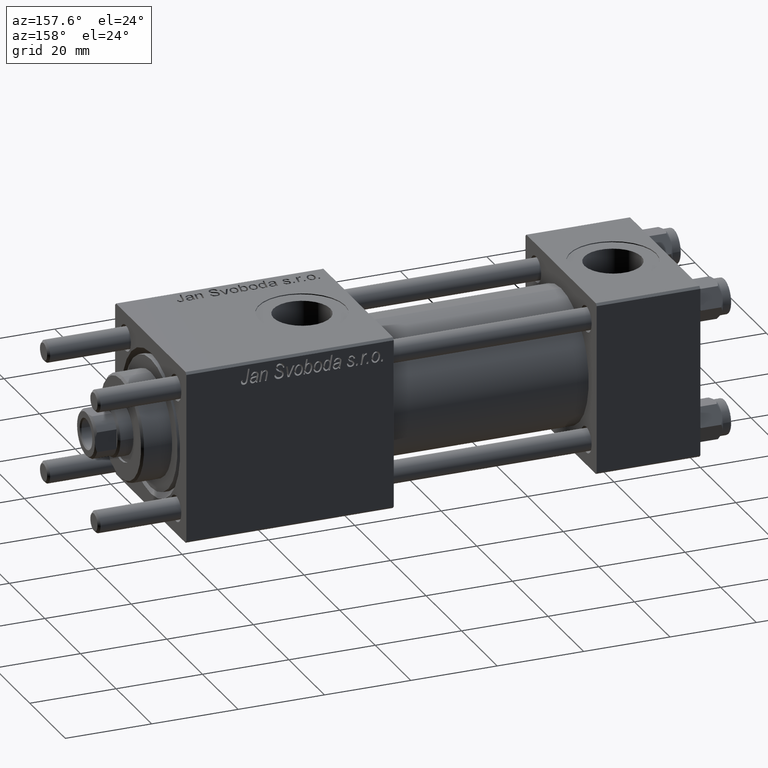
[diagram: clean part render]
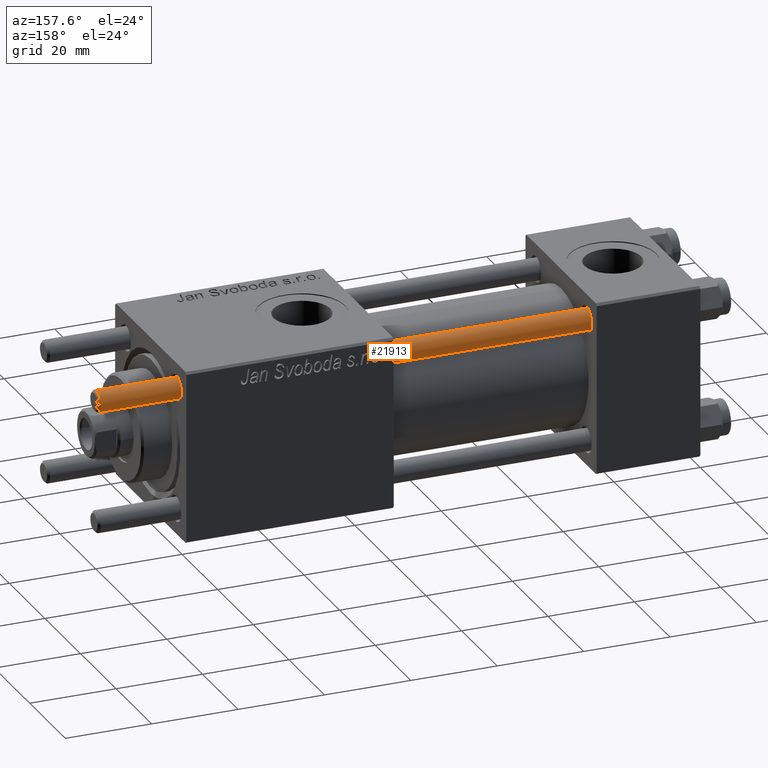
[diagram: same view with one face highlighted and labeled with its STEP entity id]
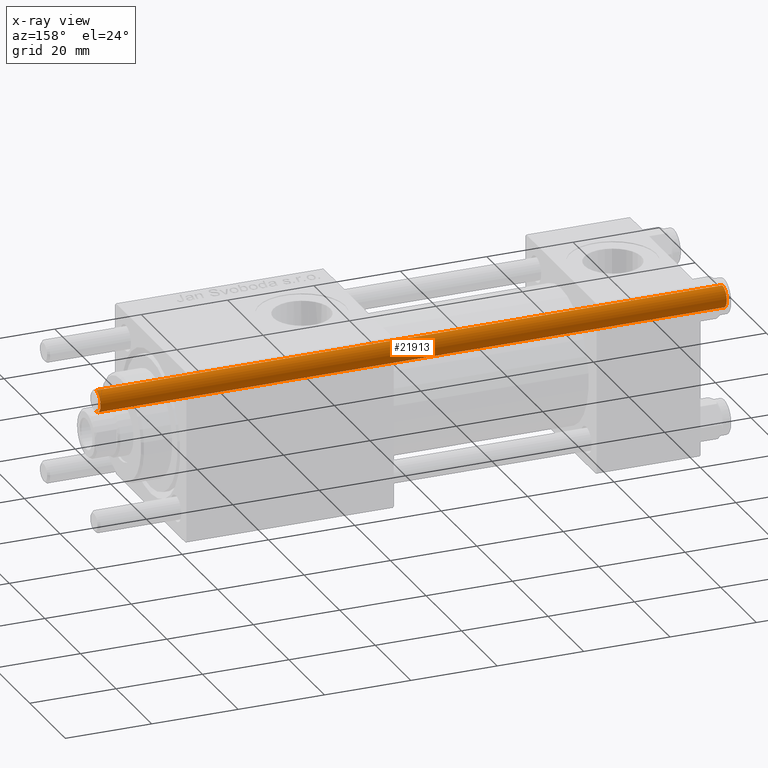
[diagram: x-ray of the same camera — body ghosted, the highlighted face saturated]
A machine part, auxiliary view. The second image highlights one B-rep face of the part: STEP entity #21913.
The next image is the same camera in x-ray: the body ghosted, the highlighted face saturated — about 0% of this face is hidden behind the body in this view.
In plain terms, the highlighted cylindrical surface (edge-blend (fillet) strip) has radius 2.5 mm, axis along (1, -0, -0).
Its self-contained STEP definition (entity closure, byte-faithful):
#2074 = DIRECTION ( 'NONE',  ( -0.000000000000000000, -0.000000000000000000, -1.000000000000000000 ) ) ;
#2464 = DIRECTION ( 'NONE',  ( -0.000000000000000000, -0.000000000000000000, -1.000000000000000000 ) ) ;
#5085 = CARTESIAN_POINT ( 'NONE',  ( -2.500000000000000000, 0.000000000000000000, 145.5000000000000284 ) ) ;
#7611 = CARTESIAN_POINT ( 'NONE',  ( 0.000000000000000000, 0.000000000000000000, 146.0000000000000000 ) ) ;
#8663 = AXIS2_PLACEMENT_3D ( 'NONE', #15489, #46460, #29249 ) ;
#11527 = ORIENTED_EDGE ( 'NONE', *, *, #47629, .T. ) ;
#11583 = EDGE_LOOP ( 'NONE', ( #27570, #29901, #11527, #34920 ) ) ;
#12493 = FACE_OUTER_BOUND ( 'NONE', #11583, .T. ) ;
#13865 = CARTESIAN_POINT ( 'NONE',  ( 0.000000000000000000, 0.000000000000000000, 145.5000000000000284 ) ) ;
#15489 = CARTESIAN_POINT ( 'NONE',  ( 0.000000000000000000, 0.000000000000000000, 0.5000000000000559552 ) ) ;
#17687 = AXIS2_PLACEMENT_3D ( 'NONE', #7611, #38603, #33456 ) ;
#21420 = VERTEX_POINT ( 'NONE', #38177 ) ;
#21680 = AXIS2_PLACEMENT_3D ( 'NONE', #13865, #35962, #30797 ) ;
#21913 = ADVANCED_FACE ( 'NONE', ( #12493 ), #42622, .T. ) ;
#23136 = CARTESIAN_POINT ( 'NONE',  ( -2.500000000000000000, 0.000000000000000000, 146.0000000000000000 ) ) ;
#23283 = VECTOR ( 'NONE', #2464, 1000.000000000000000 ) ;
#24174 = EDGE_CURVE ( 'NONE', #40471, #21420, #46258, .T. ) ;
#25169 = CIRCLE ( 'NONE', #8663, 2.500000000000000000 ) ;
#27570 = ORIENTED_EDGE ( 'NONE', *, *, #54165, .T. ) ;
#29249 = DIRECTION ( 'NONE',  ( 1.000000000000000000, 0.000000000000000000, 0.000000000000000000 ) ) ;
#29901 = ORIENTED_EDGE ( 'NONE', *, *, #24174, .T. ) ;
#30797 = DIRECTION ( 'NONE',  ( 1.000000000000000000, 0.000000000000000000, 0.000000000000000000 ) ) ;
#33456 = DIRECTION ( 'NONE',  ( -1.000000000000000000, 0.000000000000000000, 0.000000000000000000 ) ) ;
#34521 = CIRCLE ( 'NONE', #21680, 2.500000000000000000 ) ;
#34637 = CARTESIAN_POINT ( 'NONE',  ( -2.500000000000000000, 0.000000000000000000, 0.5000000000000559552 ) ) ;
#34920 = ORIENTED_EDGE ( 'NONE', *, *, #45285, .F. ) ;
#35962 = DIRECTION ( 'NONE',  ( 0.000000000000000000, 0.000000000000000000, -1.000000000000000000 ) ) ;
#37097 = CARTESIAN_POINT ( 'NONE',  ( 2.500000000000000000, 3.061616997868383141E-16, 146.0000000000000000 ) ) ;
#38177 = CARTESIAN_POINT ( 'NONE',  ( 2.500000000000000000, 3.061616997868383141E-16, 0.5000000000000559552 ) ) ;
#38603 = DIRECTION ( 'NONE',  ( -0.000000000000000000, -0.000000000000000000, -1.000000000000000000 ) ) ;
#40471 = VERTEX_POINT ( 'NONE', #52578 ) ;
#42622 = CYLINDRICAL_SURFACE ( 'NONE', #17687, 2.500000000000000000 ) ;
#45220 = LINE ( 'NONE', #23136, #23283 ) ;
#45285 = EDGE_CURVE ( 'NONE', #49004, #50347, #45220, .T. ) ;
#46258 = LINE ( 'NONE', #37097, #48940 ) ;
#46460 = DIRECTION ( 'NONE',  ( -0.000000000000000000, -0.000000000000000000, 1.000000000000000000 ) ) ;
#47629 = EDGE_CURVE ( 'NONE', #21420, #50347, #25169, .T. ) ;
#48940 = VECTOR ( 'NONE', #2074, 1000.000000000000000 ) ;
#49004 = VERTEX_POINT ( 'NONE', #5085 ) ;
#50347 = VERTEX_POINT ( 'NONE', #34637 ) ;
#52578 = CARTESIAN_POINT ( 'NONE',  ( 2.500000000000000000, 3.061616997868383141E-16, 145.5000000000000284 ) ) ;
#54165 = EDGE_CURVE ( 'NONE', #49004, #40471, #34521, .T. ) ;